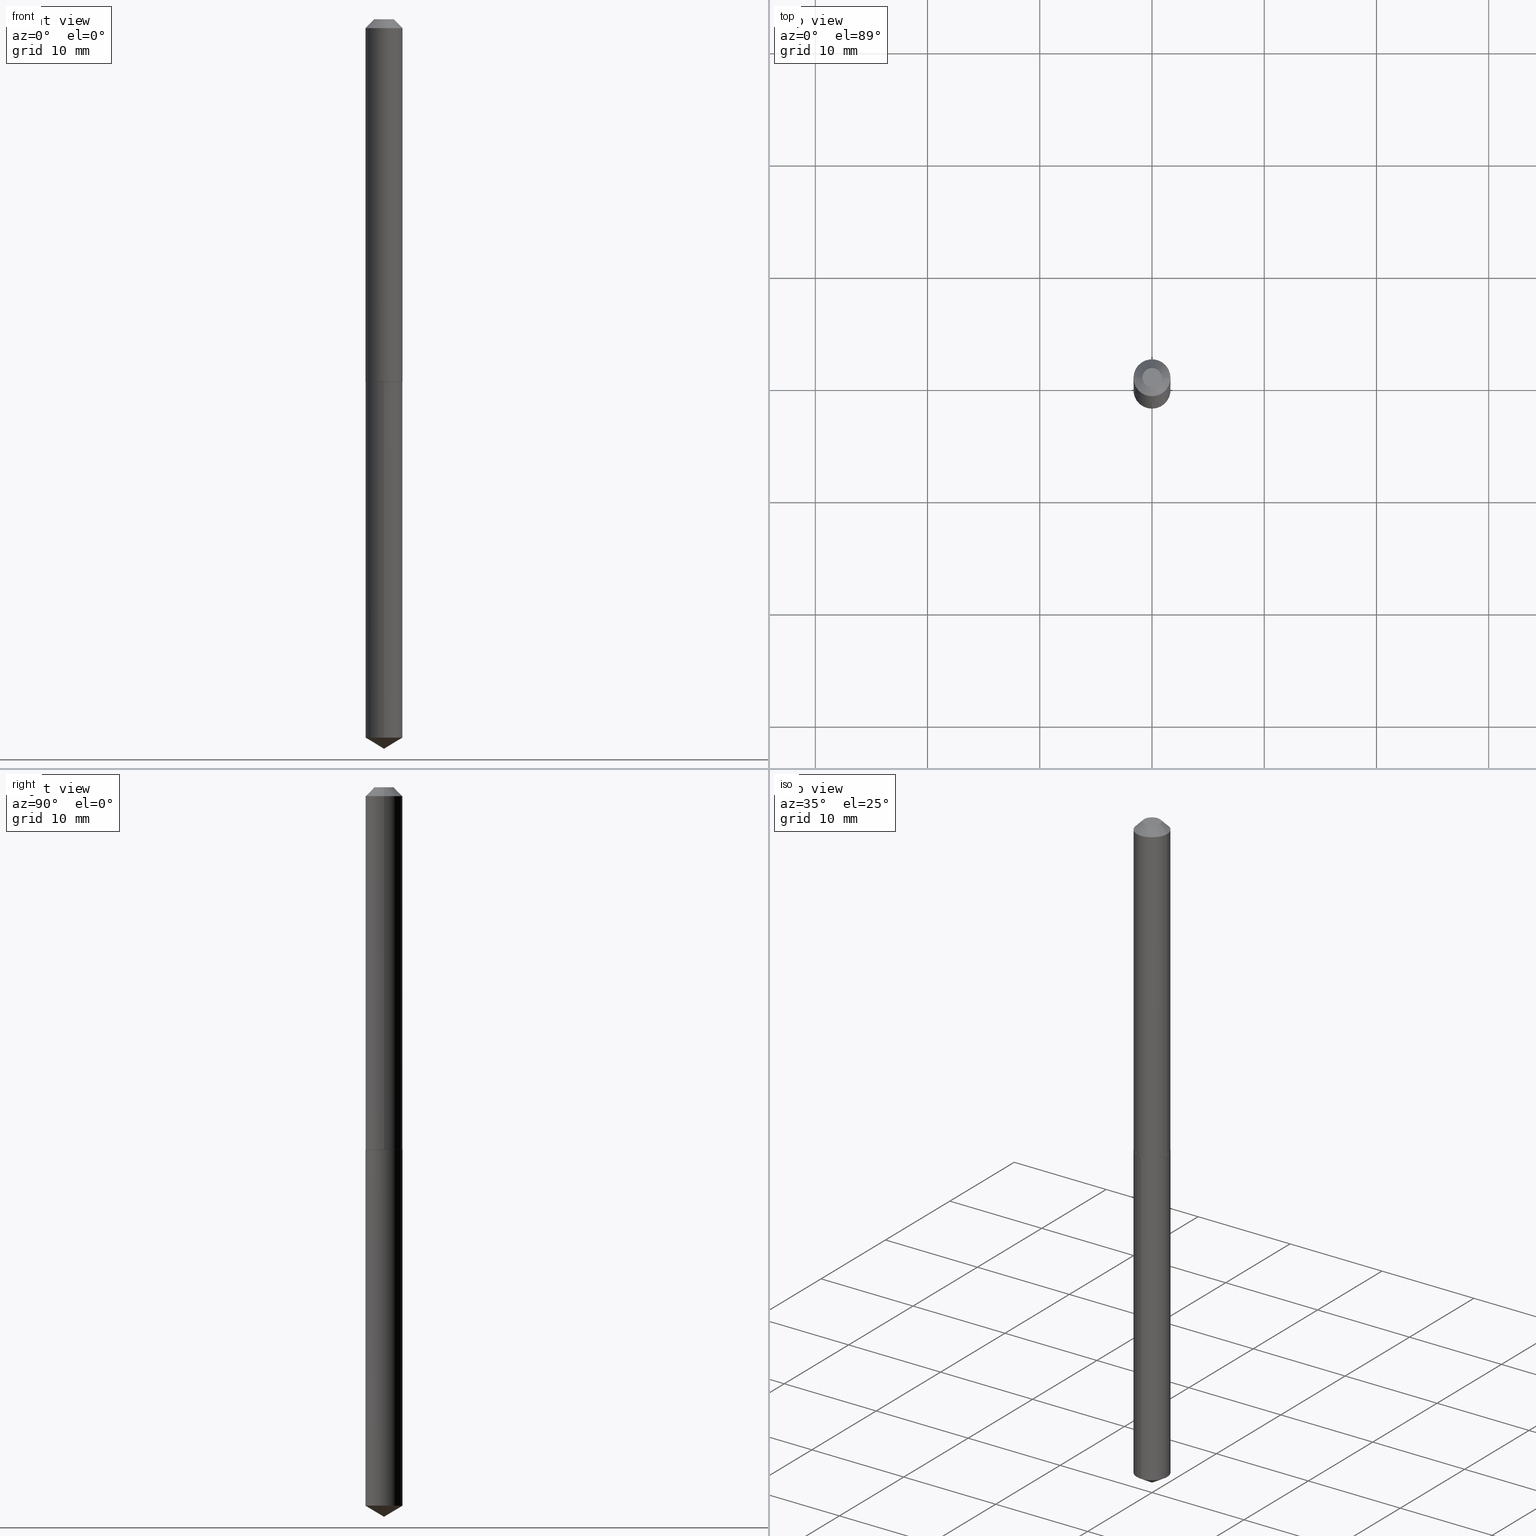
[diagram: canonical four-view strip — front | top / right | iso, engineering-drawing reading convention]
A machine part, canonical four-view strip (front | top / right | iso — engineering-drawing reading convention). The complete STEP part file that produces these views, byte-faithful:
ISO-10303-21;
HEADER;
FILE_DESCRIPTION (( 'STEP AP203' ),
    '1' );
FILE_NAME ('61070.STEP',
    '2024-04-23T03:10:02',
    ( '' ),
    ( '' ),
    'SwSTEP 2.0',
    'SolidWorks 2023',
    '' );
FILE_SCHEMA (( 'CONFIG_CONTROL_DESIGN' ));
ENDSEC;

DATA;
#1 =( CONVERSION_BASED_UNIT ( 'INCH', #216 ) LENGTH_UNIT ( ) NAMED_UNIT ( #62 ) );
#2 = ORIENTED_EDGE ( 'NONE', *, *, #220, .F. ) ;
#3 = VECTOR ( 'NONE', #80, 39.37007874015748143 ) ;
#4 = CARTESIAN_POINT ( 'NONE',  ( 6.258200250177314910E-29, -8.935048421693857319E-15, -2.559099999999999930 ) ) ;
#5 = ADVANCED_FACE ( 'NONE', ( #191 ), #238, .T. ) ;
#6 = DIRECTION ( 'NONE',  ( -1.000000000000000000, 6.982962677686266711E-15, 0.000000000000000000 ) ) ;
#7 = FACE_OUTER_BOUND ( 'NONE', #155, .T. ) ;
#8 = AXIS2_PLACEMENT_3D ( 'NONE', #338, #193, #314 ) ;
#9 = AXIS2_PLACEMENT_3D ( 'NONE', #377, #18, #171 ) ;
#10 = LINE ( 'NONE', #159, #65 ) ;
#11 = DESIGN_CONTEXT ( 'detailed design', #241, 'design' ) ;
#12 = FACE_OUTER_BOUND ( 'NONE', #358, .T. ) ;
#13 = CARTESIAN_POINT ( 'NONE',  ( 0.000000000000000000, 0.000000000000000000, 0.000000000000000000 ) ) ;
#14 = CARTESIAN_POINT ( 'NONE',  ( 4.614975068762160884E-16, 0.06494999999999555296, -1.271700000000000275 ) ) ;
#15 = CARTESIAN_POINT ( 'NONE',  ( 0.06445000000000018769, -4.890168763183709857E-15, -1.271700000000000053 ) ) ;
#16 = EDGE_LOOP ( 'NONE', ( #328, #149, #280, #21 ) ) ;
#17 = CARTESIAN_POINT ( 'NONE',  ( 7.642090019328601786E-31, -1.091087918388490144E-16, -0.03125000000000020123 ) ) ;
#18 = DIRECTION ( 'NONE',  ( -2.445534301021628204E-29, 3.491387546509555322E-15, 1.000000000000000000 ) ) ;
#19 = EDGE_LOOP ( 'NONE', ( #212, #88, #215, #326 ) ) ;
#20 = MECHANICAL_CONTEXT ( 'NONE', #208, 'mechanical' ) ;
#21 = ORIENTED_EDGE ( 'NONE', *, *, #207, .F. ) ;
#22 = VERTEX_POINT ( 'NONE', #337 ) ;
#23 = VECTOR ( 'NONE', #254, 39.37007874015748143 ) ;
#24 = AXIS2_PLACEMENT_3D ( 'NONE', #107, #352, #43 ) ;
#25 = DATE_AND_TIME ( #120, #333 ) ;
#26 = EDGE_CURVE ( 'NONE', #384, #375, #37, .T. ) ;
#27 = ORIENTED_EDGE ( 'NONE', *, *, #40, .T. ) ;
#28 = APPLICATION_PROTOCOL_DEFINITION ( 'international standard', 'config_control_design', 1994, #208 ) ;
#29 = ORIENTED_EDGE ( 'NONE', *, *, #128, .F. ) ;
#30 = DIRECTION ( 'NONE',  ( -2.445468806185136597E-29, 3.491481338843145583E-15, 1.000000000000000000 ) ) ;
#31 = CIRCLE ( 'NONE', #46, 0.03369999999999999385 ) ;
#32 = LOCAL_TIME ( 23, 10, 2.000000000000000000, #325 ) ;
#33 = FACE_OUTER_BOUND ( 'NONE', #180, .T. ) ;
#34 = CC_DESIGN_PERSON_AND_ORGANIZATION_ASSIGNMENT ( #334, #148, ( #177 ) ) ;
#35 = DIRECTION ( 'NONE',  ( 1.000000000000000000, -6.982962677686265922E-15, 4.876176775795935793E-29 ) ) ;
#36 = DIRECTION ( 'NONE',  ( -2.445534301021628204E-29, 3.491387546509555322E-15, 1.000000000000000000 ) ) ;
#37 = CIRCLE ( 'NONE', #367, 0.06494999999999999385 ) ;
#38 = CC_DESIGN_PERSON_AND_ORGANIZATION_ASSIGNMENT ( #60, #122, ( #113 ) ) ;
#39 = LINE ( 'NONE', #4, #59 ) ;
#40 = EDGE_CURVE ( 'NONE', #236, #302, #132, .T. ) ;
#41 = DIRECTION ( 'NONE',  ( 1.000000000000000000, -6.982962677686265922E-15, 4.876176775795935793E-29 ) ) ;
#42 = ADVANCED_FACE ( 'NONE', ( #370 ), #385, .T. ) ;
#43 = DIRECTION ( 'NONE',  ( 1.000000000000000000, -6.982962677686267499E-15, 0.000000000000000000 ) ) ;
#44 = FACE_OUTER_BOUND ( 'NONE', #357, .T. ) ;
#45 = AXIS2_PLACEMENT_3D ( 'NONE', #205, #292, #142 ) ;
#46 = AXIS2_PLACEMENT_3D ( 'NONE', #71, #272, #210 ) ;
#47 = ORIENTED_EDGE ( 'NONE', *, *, #336, .F. ) ;
#48 = DIRECTION ( 'NONE',  ( -2.445468806185136597E-29, 3.491481338843145583E-15, 1.000000000000000000 ) ) ;
#49 = CARTESIAN_POINT ( 'NONE',  ( -4.535434259156918360E-16, -0.06495000000000443474, -1.271699999999999608 ) ) ;
#50 = EDGE_CURVE ( 'NONE', #320, #53, #192, .T. ) ;
#51 = AXIS2_PLACEMENT_3D ( 'NONE', #99, #256, #197 ) ;
#52 = APPLICATION_PROTOCOL_DEFINITION ( 'international standard', 'config_control_design', 1994, #241 ) ;
#53 = VERTEX_POINT ( 'NONE', #64 ) ;
#54 = PERSON_AND_ORGANIZATION ( #243, #112 ) ;
#55 = CARTESIAN_POINT ( 'NONE',  ( 6.162844369715857787E-29, -8.798674614487400360E-15, -2.520074102794160442 ) ) ;
#56 = EDGE_CURVE ( 'NONE', #236, #307, #188, .T. ) ;
#57 = DATE_AND_TIME ( #152, #200 ) ;
#58 = VERTEX_POINT ( 'NONE', #284 ) ;
#59 = VECTOR ( 'NONE', #311, 39.37007874015748854 ) ;
#60 = PERSON_AND_ORGANIZATION ( #243, #112 ) ;
#61 = EDGE_LOOP ( 'NONE', ( #138, #47, #154, #223 ) ) ;
#62 = DIMENSIONAL_EXPONENTS ( 1.000000000000000000, 0.000000000000000000, 0.000000000000000000, 0.000000000000000000, 0.000000000000000000, 0.000000000000000000, 0.000000000000000000 ) ;
#63 = CARTESIAN_POINT ( 'NONE',  ( 7.642090019328601786E-31, -1.091087918388490144E-16, -0.03125000000000020123 ) ) ;
#64 = CARTESIAN_POINT ( 'NONE',  ( 0.06495000000000014651, -4.891914503853131360E-15, -1.271200000000000108 ) ) ;
#65 = VECTOR ( 'NONE', #104, 39.37007874015748143 ) ;
#66 = CARTESIAN_POINT ( 'NONE',  ( -0.06494999999999999385, -1.812242428011941536E-15, -0.03125000000000020123 ) ) ;
#67 = DIRECTION ( 'NONE',  ( -0.7071067811865452413, 2.468850131082233000E-15, -0.7071067811865497932 ) ) ;
#68 = EDGE_CURVE ( 'NONE', #375, #384, #172, .T. ) ;
#69 = PLANE ( 'NONE',  #290 ) ;
#70 = AXIS2_PLACEMENT_3D ( 'NONE', #344, #175, #144 ) ;
#71 = CARTESIAN_POINT ( 'NONE',  ( -5.839929314523175409E-48, 8.337871319499080759E-34, 2.388061258337333659E-19 ) ) ;
#72 = DIRECTION ( 'NONE',  ( 1.000000000000000000, -6.982962677686269077E-15, 0.000000000000000000 ) ) ;
#73 = ADVANCED_FACE ( 'NONE', ( #103 ), #93, .T. ) ;
#74 = VERTEX_POINT ( 'NONE', #66 ) ;
#75 = CYLINDRICAL_SURFACE ( 'NONE', #246, 0.06494999999999999385 ) ;
#76 = CARTESIAN_POINT ( 'NONE',  ( -4.535434259156613663E-16, -0.06495000000000882012, -2.520074102794160442 ) ) ;
#77 = ADVANCED_BREP_SHAPE_REPRESENTATION ( '61070', ( #305, #184, #141 ), #127 ) ;
#78 = APPROVAL_PERSON_ORGANIZATION ( #82, #255, #91 ) ;
#79 = ORIENTED_EDGE ( 'NONE', *, *, #115, .T. ) ;
#80 = DIRECTION ( 'NONE',  ( 6.090539988449801312E-15, 0.8571673007021169965, 0.5150380749100461619 ) ) ;
#81 = APPROVAL ( #242, 'UNSPECIFIED' ) ;
#82 = PERSON_AND_ORGANIZATION ( #243, #112 ) ;
#83 = EDGE_LOOP ( 'NONE', ( #387, #331, #349, #251 ) ) ;
#84 = CARTESIAN_POINT ( 'NONE',  ( 0.000000000000000000, 0.000000000000000000, 0.000000000000000000 ) ) ;
#85 = CIRCLE ( 'NONE', #259, 0.06445000000000018769 ) ;
#86 = EDGE_LOOP ( 'NONE', ( #123, #189 ) ) ;
#87 = PERSON_AND_ORGANIZATION_ROLE ( 'design_supplier' ) ;
#88 = ORIENTED_EDGE ( 'NONE', *, *, #207, .T. ) ;
#89 = EDGE_CURVE ( 'NONE', #182, #74, #10, .T. ) ;
#90 = ORIENTED_EDGE ( 'NONE', *, *, #128, .T. ) ;
#91 = APPROVAL_ROLE ( '' ) ;
#92 = EDGE_LOOP ( 'NONE', ( #151, #27, #282, #247 ) ) ;
#93 = CONICAL_SURFACE ( 'NONE', #315, 0.06494999999999999385, 0.7853981633974450594 ) ;
#94 = APPROVAL_PERSON_ORGANIZATION ( #250, #285, #131 ) ;
#95 = EDGE_LOOP ( 'NONE', ( #306, #249, #278 ) ) ;
#96 = CC_DESIGN_DATE_AND_TIME_ASSIGNMENT ( #156, #273, ( #113 ) ) ;
#97 = DIRECTION ( 'NONE',  ( 0.7071067811865452413, -7.319954787623248157E-15, -0.7071067811865497932 ) ) ;
#98 = CALENDAR_DATE ( 2024, 22, 4 ) ;
#99 = CARTESIAN_POINT ( 'NONE',  ( 6.162844369715857787E-29, -8.798674614487400360E-15, -2.520074102794160442 ) ) ;
#100 = CIRCLE ( 'NONE', #9, 0.06494999999999999385 ) ;
#101 = VECTOR ( 'NONE', #240, 39.37007874015748143 ) ;
#102 = LINE ( 'NONE', #342, #294 ) ;
#103 = FACE_OUTER_BOUND ( 'NONE', #61, .T. ) ;
#104 = DIRECTION ( 'NONE',  ( -2.445468806185136877E-29, 3.491481338843145188E-15, 1.000000000000000000 ) ) ;
#105 = AXIS2_PLACEMENT_3D ( 'NONE', #316, #270, #137 ) ;
#106 = FACE_OUTER_BOUND ( 'NONE', #16, .T. ) ;
#107 = CARTESIAN_POINT ( 'NONE',  ( 3.108679946422545888E-29, -4.438371077937407378E-15, -1.271200000000000108 ) ) ;
#108 = FACE_OUTER_BOUND ( 'NONE', #19, .T. ) ;
#109 = PRODUCT_DEFINITION_SHAPE ( 'NONE', 'NONE',  #113 ) ;
#110 = CIRCLE ( 'NONE', #361, 0.06495000000000014651 ) ;
#111 = CYLINDRICAL_SURFACE ( 'NONE', #271, 0.06495000000000007712 ) ;
#112 = ORGANIZATION ( 'UNSPECIFIED', 'UNSPECIFIED', '' ) ;
#113 = PRODUCT_DEFINITION ( 'UNKNOWN', '', #239, #11 ) ;
#114 = DIRECTION ( 'NONE',  ( 1.000000000000000000, -6.982962677686265133E-15, 0.000000000000000000 ) ) ;
#115 = EDGE_CURVE ( 'NONE', #274, #22, #227, .T. ) ;
#116 =( NAMED_UNIT ( * ) SI_UNIT ( $, .STERADIAN. ) SOLID_ANGLE_UNIT ( ) );
#117 = VERTEX_POINT ( 'NONE', #226 ) ;
#118 = PERSON_AND_ORGANIZATION_ROLE ( 'creator' ) ;
#119 = ORIENTED_EDGE ( 'NONE', *, *, #139, .T. ) ;
#120 = CALENDAR_DATE ( 2024, 22, 4 ) ;
#121 = ORIENTED_EDGE ( 'NONE', *, *, #341, .F. ) ;
#122 = PERSON_AND_ORGANIZATION_ROLE ( 'creator' ) ;
#123 = ORIENTED_EDGE ( 'NONE', *, *, #336, .T. ) ;
#124 = APPROVAL_DATE_TIME ( #366, #285 ) ;
#125 = CARTESIAN_POINT ( 'NONE',  ( -9.002259445301660668E-28, 1.285212734725032045E-13, 36.81097874015748062 ) ) ;
#126 = AXIS2_PLACEMENT_3D ( 'NONE', #364, #365, #308 ) ;
#127 =( GEOMETRIC_REPRESENTATION_CONTEXT ( 3 ) GLOBAL_UNCERTAINTY_ASSIGNED_CONTEXT ( ( #229 ) ) GLOBAL_UNIT_ASSIGNED_CONTEXT ( ( #1, #183, #116 ) ) REPRESENTATION_CONTEXT ( 'NONE', 'WORKASPACE' ) );
#128 = EDGE_CURVE ( 'NONE', #320, #58, #85, .T. ) ;
#129 = DIRECTION ( 'NONE',  ( 2.445468806185136597E-29, -3.491481338843145583E-15, -1.000000000000000000 ) ) ;
#130 = CARTESIAN_POINT ( 'NONE',  ( 0.06495000000000014651, -4.891914503853131360E-15, -1.271200000000000108 ) ) ;
#131 = APPROVAL_ROLE ( '' ) ;
#132 = LINE ( 'NONE', #232, #194 ) ;
#133 = ADVANCED_FACE ( 'NONE', ( #339 ), #369, .F. ) ;
#134 = APPROVAL_PERSON_ORGANIZATION ( #275, #81, #181 ) ;
#135 = DIRECTION ( 'NONE',  ( 2.445534301021627643E-29, -3.491387546509555322E-15, -1.000000000000000000 ) ) ;
#136 = DIRECTION ( 'NONE',  ( -2.445468806185136597E-29, 3.491481338843145583E-15, 1.000000000000000000 ) ) ;
#137 = DIRECTION ( 'NONE',  ( 1.000000000000000000, -6.982962677686267499E-15, 0.000000000000000000 ) ) ;
#138 = ORIENTED_EDGE ( 'NONE', *, *, #40, .F. ) ;
#139 = EDGE_CURVE ( 'NONE', #117, #375, #39, .T. ) ;
#140 = AXIS2_PLACEMENT_3D ( 'NONE', #343, #135, #165 ) ;
#141 = AXIS2_PLACEMENT_3D ( 'NONE', #84, #248, #386 ) ;
#142 = DIRECTION ( 'NONE',  ( 1.000000000000000000, -6.982962677686267499E-15, 0.000000000000000000 ) ) ;
#143 = CARTESIAN_POINT ( 'NONE',  ( 6.258368290450620302E-29, -8.934809870272603264E-15, -2.559099999999999930 ) ) ;
#144 = DIRECTION ( 'NONE',  ( -6.982962677686267499E-15, -1.000000000000000000, 3.468864327941548460E-15 ) ) ;
#145 = ADVANCED_FACE ( 'NONE', ( #33 ), #196, .T. ) ;
#146 = AXIS2_PLACEMENT_3D ( 'NONE', #312, #30, #35 ) ;
#147 = LINE ( 'NONE', #143, #3 ) ;
#148 = PERSON_AND_ORGANIZATION_ROLE ( 'design_owner' ) ;
#149 = ORIENTED_EDGE ( 'NONE', *, *, #341, .T. ) ;
#150 = COORDINATED_UNIVERSAL_TIME_OFFSET ( 5, 0, .BEHIND. ) ;
#151 = ORIENTED_EDGE ( 'NONE', *, *, #56, .F. ) ;
#152 = CALENDAR_DATE ( 2024, 22, 4 ) ;
#153 = CLOSED_SHELL ( 'NONE', ( #42, #145, #262, #161, #318, #300, #73, #340 ) ) ;
#154 = ORIENTED_EDGE ( 'NONE', *, *, #170, .T. ) ;
#155 = EDGE_LOOP ( 'NONE', ( #29, #121 ) ) ;
#156 = DATE_AND_TIME ( #218, #321 ) ;
#157 = EDGE_CURVE ( 'NONE', #53, #302, #163, .T. ) ;
#158 = ORIENTED_EDGE ( 'NONE', *, *, #26, .T. ) ;
#159 = CARTESIAN_POINT ( 'NONE',  ( -0.06495000000000007712, 4.614975068761856187E-16, -3.194848341120565109E-30 ) ) ;
#160 = AXIS2_PLACEMENT_3D ( 'NONE', #263, #36, #289 ) ;
#161 = ADVANCED_FACE ( 'NONE', ( #7 ), #69, .F. ) ;
#162 = CIRCLE ( 'NONE', #373, 0.06445000000000018769 ) ;
#163 = LINE ( 'NONE', #164, #354 ) ;
#164 = CARTESIAN_POINT ( 'NONE',  ( 0.06495000000000007712, -4.535434259157234891E-16, 3.167076815879463918E-30 ) ) ;
#165 = DIRECTION ( 'NONE',  ( 6.982962677686265922E-15, 1.000000000000000000, -3.491387546509555322E-15 ) ) ;
#166 = VECTOR ( 'NONE', #268, 39.37007874015748143 ) ;
#167 = SECURITY_CLASSIFICATION ( '', '', #186 ) ;
#168 = CARTESIAN_POINT ( 'NONE',  ( -0.06495000000000014651, -3.976873571061221069E-15, -1.271200000000000108 ) ) ;
#169 = DIRECTION ( 'NONE',  ( 1.000000000000000000, -6.982962677686267499E-15, 0.000000000000000000 ) ) ;
#170 = EDGE_CURVE ( 'NONE', #307, #74, #102, .T. ) ;
#171 = DIRECTION ( 'NONE',  ( -6.982962677686266711E-15, -1.000000000000000000, 4.206078512185163024E-15 ) ) ;
#172 = CIRCLE ( 'NONE', #51, 0.06494999999999999385 ) ;
#173 = CC_DESIGN_APPROVAL ( #81, ( #239 ) ) ;
#174 = CARTESIAN_POINT ( 'NONE',  ( 7.642090019328601786E-31, -1.091087918388490144E-16, -0.03125000000000020123 ) ) ;
#175 = DIRECTION ( 'NONE',  ( -2.445534301021628204E-29, 3.491387546509555322E-15, 1.000000000000000000 ) ) ;
#176 = CARTESIAN_POINT ( 'NONE',  ( 3.109902680825638129E-29, -4.440116818606828093E-15, -1.271700000000000053 ) ) ;
#177 = PRODUCT ( '61070', '61070', '', ( #20 ) ) ;
#178 = PERSON_AND_ORGANIZATION ( #243, #112 ) ;
#179 = LOCAL_TIME ( 23, 10, 2.000000000000000000, #287 ) ;
#180 = EDGE_LOOP ( 'NONE', ( #206, #335, #2, #389 ) ) ;
#181 = APPROVAL_ROLE ( '' ) ;
#182 = VERTEX_POINT ( 'NONE', #168 ) ;
#183 =( NAMED_UNIT ( * ) PLANE_ANGLE_UNIT ( ) SI_UNIT ( $, .RADIAN. ) );
#184 = MANIFOLD_SOLID_BREP ( 'Body-Move/Copy2[2]', #153 ) ;
#185 = DIRECTION ( 'NONE',  ( -2.445534301021628204E-29, 3.491387546509555322E-15, 1.000000000000000000 ) ) ;
#186 = SECURITY_CLASSIFICATION_LEVEL ( 'unclassified' ) ;
#187 = AXIS2_PLACEMENT_3D ( 'NONE', #225, #129, #198 ) ;
#188 = CIRCLE ( 'NONE', #126, 0.03369999999999999385 ) ;
#189 = ORIENTED_EDGE ( 'NONE', *, *, #56, .T. ) ;
#190 = COORDINATED_UNIVERSAL_TIME_OFFSET ( 5, 0, .BEHIND. ) ;
#191 = FACE_OUTER_BOUND ( 'NONE', #95, .T. ) ;
#192 = LINE ( 'NONE', #130, #23 ) ;
#193 = DIRECTION ( 'NONE',  ( -2.445534301021628204E-29, 3.491387546509555322E-15, 1.000000000000000000 ) ) ;
#194 = VECTOR ( 'NONE', #97, 39.37007874015748143 ) ;
#195 = ADVANCED_FACE ( 'NONE', ( #12 ), #313, .T. ) ;
#196 = CYLINDRICAL_SURFACE ( 'NONE', #146, 0.06495000000000007712 ) ;
#197 = DIRECTION ( 'NONE',  ( -6.982962677686266711E-15, -1.000000000000000000, 0.000000000000000000 ) ) ;
#198 = DIRECTION ( 'NONE',  ( -1.000000000000000000, 6.982962677686266711E-15, 0.000000000000000000 ) ) ;
#199 = CIRCLE ( 'NONE', #332, 0.06494999999999999385 ) ;
#200 = LOCAL_TIME ( 23, 10, 2.000000000000000000, #355 ) ;
#201 = FACE_OUTER_BOUND ( 'NONE', #86, .T. ) ;
#202 = EDGE_CURVE ( 'NONE', #375, #274, #260, .T. ) ;
#203 = LINE ( 'NONE', #317, #101 ) ;
#204 = ORIENTED_EDGE ( 'NONE', *, *, #323, .F. ) ;
#205 = CARTESIAN_POINT ( 'NONE',  ( 3.108679946422545888E-29, -4.438371077937407378E-15, -1.271200000000000108 ) ) ;
#206 = ORIENTED_EDGE ( 'NONE', *, *, #382, .T. ) ;
#207 = EDGE_CURVE ( 'NONE', #182, #53, #110, .T. ) ;
#208 = APPLICATION_CONTEXT ( 'configuration controlled 3d designs of mechanical parts and assemblies' ) ;
#209 = CIRCLE ( 'NONE', #24, 0.06495000000000014651 ) ;
#210 = DIRECTION ( 'NONE',  ( 1.000000000000000000, -6.982962677686267499E-15, 4.876196328173749550E-29 ) ) ;
#211 = CARTESIAN_POINT ( 'NONE',  ( 4.614975068762467554E-16, 0.06494999999999120921, -2.520074102794160442 ) ) ;
#212 = ORIENTED_EDGE ( 'NONE', *, *, #89, .F. ) ;
#213 = PRODUCT_RELATED_PRODUCT_CATEGORY ( 'detail', '', ( #177 ) ) ;
#214 = APPROVAL_STATUS ( 'not_yet_approved' ) ;
#215 = ORIENTED_EDGE ( 'NONE', *, *, #157, .T. ) ;
#216 = LENGTH_MEASURE_WITH_UNIT ( LENGTH_MEASURE( 0.02539999999999999897 ), #221 );
#217 = ORIENTED_EDGE ( 'NONE', *, *, #267, .T. ) ;
#218 = CALENDAR_DATE ( 2024, 22, 4 ) ;
#219 = ORIENTED_EDGE ( 'NONE', *, *, #360, .T. ) ;
#220 = EDGE_CURVE ( 'NONE', #302, #74, #199, .T. ) ;
#221 =( LENGTH_UNIT ( ) NAMED_UNIT ( * ) SI_UNIT ( $, .METRE. ) );
#222 = CC_DESIGN_SECURITY_CLASSIFICATION ( #167, ( #239 ) ) ;
#223 = ORIENTED_EDGE ( 'NONE', *, *, #264, .T. ) ;
#224 = ORIENTED_EDGE ( 'NONE', *, *, #261, .F. ) ;
#225 = CARTESIAN_POINT ( 'NONE',  ( 7.642090019328601786E-31, -1.091087918388490144E-16, -0.03125000000000020123 ) ) ;
#226 = CARTESIAN_POINT ( 'NONE',  ( 6.258366829744447257E-29, -8.934809870272603264E-15, -2.559099999999999930 ) ) ;
#227 = CIRCLE ( 'NONE', #8, 0.06494999999999999385 ) ;
#228 = CARTESIAN_POINT ( 'NONE',  ( 3.109902680825638129E-29, -4.440116818606828093E-15, -1.271700000000000053 ) ) ;
#229 = UNCERTAINTY_MEASURE_WITH_UNIT (LENGTH_MEASURE( 1.000000000000000082E-05 ), #1, 'distance_accuracy_value', 'NONE');
#230 = CARTESIAN_POINT ( 'NONE',  ( 3.109902680825638129E-29, -4.440116818606828093E-15, -1.271700000000000053 ) ) ;
#231 = CC_DESIGN_PERSON_AND_ORGANIZATION_ASSIGNMENT ( #54, #87, ( #239 ) ) ;
#232 = CARTESIAN_POINT ( 'NONE',  ( 0.06494999999999999385, -5.546981367941099671E-16, -0.03125000000000020123 ) ) ;
#233 = CLOSED_SHELL ( 'NONE', ( #390, #5, #309, #195, #133 ) ) ;
#234 = CARTESIAN_POINT ( 'NONE',  ( -0.03369999999999999385, 2.898802381574505777E-16, 2.388061258318971361E-19 ) ) ;
#235 = FACE_OUTER_BOUND ( 'NONE', #276, .T. ) ;
#236 = VERTEX_POINT ( 'NONE', #297 ) ;
#237 = CARTESIAN_POINT ( 'NONE',  ( 0.06494999999999999385, -5.626522177545718995E-16, -0.03125000000000020123 ) ) ;
#238 = CONICAL_SURFACE ( 'NONE', #310, 65.52281426576929846, 1.029744258676660307 ) ;
#239 = PRODUCT_DEFINITION_FORMATION_WITH_SPECIFIED_SOURCE ( 'ANY', '', #177, .NOT_KNOWN. ) ;
#240 = DIRECTION ( 'NONE',  ( -0.7071067811865957564, 7.493145998870527710E-15, 0.7071067811864992780 ) ) ;
#241 = APPLICATION_CONTEXT ( 'configuration controlled 3d designs of mechanical parts and assemblies' ) ;
#242 = APPROVAL_STATUS ( 'not_yet_approved' ) ;
#243 = PERSON ( 'UNSPECIFIED', 'UNSPECIFIED', 'UNSPECIFIED', ('UNSPECIFIED'), ('UNSPECIFIED'), ('UNSPECIFIED') ) ;
#244 = EDGE_LOOP ( 'NONE', ( #79, #217 ) ) ;
#245 = PERSON_AND_ORGANIZATION_ROLE ( 'classification_officer' ) ;
#246 = AXIS2_PLACEMENT_3D ( 'NONE', #176, #281, #301 ) ;
#247 = ORIENTED_EDGE ( 'NONE', *, *, #170, .F. ) ;
#248 = DIRECTION ( 'NONE',  ( 0.000000000000000000, 0.000000000000000000, 1.000000000000000000 ) ) ;
#249 = ORIENTED_EDGE ( 'NONE', *, *, #323, .T. ) ;
#250 = PERSON_AND_ORGANIZATION ( #243, #112 ) ;
#251 = ORIENTED_EDGE ( 'NONE', *, *, #202, .F. ) ;
#252 = CONICAL_SURFACE ( 'NONE', #70, 65.52281426576929846, 1.029744258676660307 ) ;
#253 = DIRECTION ( 'NONE',  ( -6.982962677686267499E-15, -1.000000000000000000, 3.468864327941548460E-15 ) ) ;
#254 = DIRECTION ( 'NONE',  ( 0.7071067811865957564, -2.468850131082761932E-15, 0.7071067811864992780 ) ) ;
#255 = APPROVAL ( #214, 'UNSPECIFIED' ) ;
#256 = DIRECTION ( 'NONE',  ( -2.445534301021628204E-29, 3.491387546509555322E-15, 1.000000000000000000 ) ) ;
#257 = SHAPE_DEFINITION_REPRESENTATION ( #109, #77 ) ;
#258 = DIRECTION ( 'NONE',  ( -2.438088387897960049E-29, 3.491481338843145188E-15, 1.000000000000000000 ) ) ;
#259 = AXIS2_PLACEMENT_3D ( 'NONE', #230, #136, #286 ) ;
#260 = LINE ( 'NONE', #319, #283 ) ;
#261 = EDGE_CURVE ( 'NONE', #384, #22, #379, .T. ) ;
#262 = ADVANCED_FACE ( 'NONE', ( #44 ), #372, .T. ) ;
#263 = CARTESIAN_POINT ( 'NONE',  ( 3.109902680825638129E-29, -4.440116818606828093E-15, -1.271700000000000053 ) ) ;
#264 = EDGE_CURVE ( 'NONE', #74, #302, #378, .T. ) ;
#265 = PLANE ( 'NONE',  #362 ) ;
#266 = CONICAL_SURFACE ( 'NONE', #105, 0.06495000000000014651, 0.7853981633975165577 ) ;
#267 = EDGE_CURVE ( 'NONE', #22, #274, #100, .T. ) ;
#268 = DIRECTION ( 'NONE',  ( -2.445534301021628204E-29, 3.491387546509555322E-15, 1.000000000000000000 ) ) ;
#269 = CARTESIAN_POINT ( 'NONE',  ( -2.919964657261587705E-48, 4.168935659749540379E-34, 1.194030629168666829E-19 ) ) ;
#270 = DIRECTION ( 'NONE',  ( -2.445468806185136597E-29, 3.491481338843145583E-15, 1.000000000000000000 ) ) ;
#271 = AXIS2_PLACEMENT_3D ( 'NONE', #13, #350, #41 ) ;
#272 = DIRECTION ( 'NONE',  ( -2.445468806185136597E-29, 3.491481338843145583E-15, 1.000000000000000000 ) ) ;
#273 = DATE_TIME_ROLE ( 'creation_date' ) ;
#274 = VERTEX_POINT ( 'NONE', #49 ) ;
#275 = PERSON_AND_ORGANIZATION ( #243, #112 ) ;
#276 = EDGE_LOOP ( 'NONE', ( #204, #119, #353 ) ) ;
#277 = AXIS2_PLACEMENT_3D ( 'NONE', #17, #293, #324 ) ;
#278 = ORIENTED_EDGE ( 'NONE', *, *, #68, .F. ) ;
#279 = DATE_AND_TIME ( #330, #32 ) ;
#280 = ORIENTED_EDGE ( 'NONE', *, *, #50, .T. ) ;
#281 = DIRECTION ( 'NONE',  ( -2.445534301021628204E-29, 3.491387546509555322E-15, 1.000000000000000000 ) ) ;
#282 = ORIENTED_EDGE ( 'NONE', *, *, #220, .T. ) ;
#283 = VECTOR ( 'NONE', #322, 39.37007874015748143 ) ;
#284 = CARTESIAN_POINT ( 'NONE',  ( -0.06445000000000018769, -3.979522798235331481E-15, -1.271700000000000053 ) ) ;
#285 = APPROVAL ( #295, 'UNSPECIFIED' ) ;
#286 = DIRECTION ( 'NONE',  ( 1.000000000000000000, -6.982962677686269077E-15, 0.000000000000000000 ) ) ;
#287 = COORDINATED_UNIVERSAL_TIME_OFFSET ( 5, 0, .BEHIND. ) ;
#288 = DIRECTION ( 'NONE',  ( -2.445468806185136877E-29, 3.491481338843145188E-15, 1.000000000000000000 ) ) ;
#289 = DIRECTION ( 'NONE',  ( -6.982962677686266711E-15, -1.000000000000000000, 4.206078512185163024E-15 ) ) ;
#290 = AXIS2_PLACEMENT_3D ( 'NONE', #228, #258, #368 ) ;
#291 = DIRECTION ( 'NONE',  ( 2.445468806185136597E-29, -3.491481338843145583E-15, -1.000000000000000000 ) ) ;
#292 = DIRECTION ( 'NONE',  ( -2.445468806185136597E-29, 3.491481338843145583E-15, 1.000000000000000000 ) ) ;
#293 = DIRECTION ( 'NONE',  ( -2.445468806185136597E-29, 3.491481338843145583E-15, 1.000000000000000000 ) ) ;
#294 = VECTOR ( 'NONE', #67, 39.37007874015748143 ) ;
#295 = APPROVAL_STATUS ( 'not_yet_approved' ) ;
#296 = CARTESIAN_POINT ( 'NONE',  ( 3.108679946422545888E-29, -4.438371077937407378E-15, -1.271200000000000108 ) ) ;
#297 = CARTESIAN_POINT ( 'NONE',  ( 0.03369999999999999385, -3.929484596595052854E-16, 2.388061258359294556E-19 ) ) ;
#298 = CC_DESIGN_PERSON_AND_ORGANIZATION_ASSIGNMENT ( #178, #245, ( #167 ) ) ;
#299 = DIRECTION ( 'NONE',  ( -2.445468806185136597E-29, 3.491481338843145583E-15, 1.000000000000000000 ) ) ;
#300 = ADVANCED_FACE ( 'NONE', ( #108 ), #111, .T. ) ;
#301 = DIRECTION ( 'NONE',  ( -6.982962677686266711E-15, -1.000000000000000000, 4.206078512185163024E-15 ) ) ;
#302 = VERTEX_POINT ( 'NONE', #237 ) ;
#303 = ORIENTED_EDGE ( 'NONE', *, *, #382, .F. ) ;
#304 = DIRECTION ( 'NONE',  ( -6.982962677686266711E-15, -1.000000000000000000, 0.000000000000000000 ) ) ;
#305 = MANIFOLD_SOLID_BREP ( 'Body-Move/Copy2[1]', #233 ) ;
#306 = ORIENTED_EDGE ( 'NONE', *, *, #139, .F. ) ;
#307 = VERTEX_POINT ( 'NONE', #234 ) ;
#308 = DIRECTION ( 'NONE',  ( 1.000000000000000000, -6.982962677686267499E-15, 4.876196328173749550E-29 ) ) ;
#309 = ADVANCED_FACE ( 'NONE', ( #235 ), #252, .T. ) ;
#310 = AXIS2_PLACEMENT_3D ( 'NONE', #125, #329, #253 ) ;
#311 = DIRECTION ( 'NONE',  ( -5.985567269335963368E-15, -0.8571673007021134438, 0.5150380749100521571 ) ) ;
#312 = CARTESIAN_POINT ( 'NONE',  ( 0.000000000000000000, 0.000000000000000000, 0.000000000000000000 ) ) ;
#313 = CYLINDRICAL_SURFACE ( 'NONE', #160, 0.06494999999999999385 ) ;
#314 = DIRECTION ( 'NONE',  ( -6.982962677686266711E-15, -1.000000000000000000, 4.206078512185163024E-15 ) ) ;
#315 = AXIS2_PLACEMENT_3D ( 'NONE', #63, #291, #6 ) ;
#316 = CARTESIAN_POINT ( 'NONE',  ( 3.108679946422545888E-29, -4.438371077937407378E-15, -1.271200000000000108 ) ) ;
#317 = CARTESIAN_POINT ( 'NONE',  ( -0.06495000000000014651, -3.976873571061221069E-15, -1.271200000000000108 ) ) ;
#318 = ADVANCED_FACE ( 'NONE', ( #106 ), #266, .T. ) ;
#319 = CARTESIAN_POINT ( 'NONE',  ( -4.535434259156918360E-16, -0.06495000000000443474, -1.271699999999999608 ) ) ;
#320 = VERTEX_POINT ( 'NONE', #15 ) ;
#321 = LOCAL_TIME ( 23, 10, 2.000000000000000000, #190 ) ;
#322 = DIRECTION ( 'NONE',  ( -2.445534301021628204E-29, 3.491387546509555322E-15, 1.000000000000000000 ) ) ;
#323 = EDGE_CURVE ( 'NONE', #117, #384, #147, .T. ) ;
#324 = DIRECTION ( 'NONE',  ( 1.000000000000000000, -6.982962677686265133E-15, 0.000000000000000000 ) ) ;
#325 = COORDINATED_UNIVERSAL_TIME_OFFSET ( 5, 0, .BEHIND. ) ;
#326 = ORIENTED_EDGE ( 'NONE', *, *, #264, .F. ) ;
#327 = APPROVAL_DATE_TIME ( #25, #255 ) ;
#328 = ORIENTED_EDGE ( 'NONE', *, *, #360, .F. ) ;
#329 = DIRECTION ( 'NONE',  ( -2.445534301021628204E-29, 3.491387546509555322E-15, 1.000000000000000000 ) ) ;
#330 = CALENDAR_DATE ( 2024, 22, 4 ) ;
#331 = ORIENTED_EDGE ( 'NONE', *, *, #261, .T. ) ;
#332 = AXIS2_PLACEMENT_3D ( 'NONE', #174, #48, #114 ) ;
#333 = LOCAL_TIME ( 23, 10, 2.000000000000000000, #150 ) ;
#334 = PERSON_AND_ORGANIZATION ( #243, #112 ) ;
#335 = ORIENTED_EDGE ( 'NONE', *, *, #89, .T. ) ;
#336 = EDGE_CURVE ( 'NONE', #307, #236, #31, .T. ) ;
#337 = CARTESIAN_POINT ( 'NONE',  ( 4.614975068762469526E-16, 0.06494999999999556684, -1.271700000000000275 ) ) ;
#338 = CARTESIAN_POINT ( 'NONE',  ( 3.109902680825638129E-29, -4.440116818606828093E-15, -1.271700000000000053 ) ) ;
#339 = FACE_OUTER_BOUND ( 'NONE', #244, .T. ) ;
#340 = ADVANCED_FACE ( 'NONE', ( #201 ), #265, .F. ) ;
#341 = EDGE_CURVE ( 'NONE', #58, #320, #162, .T. ) ;
#342 = CARTESIAN_POINT ( 'NONE',  ( -0.06494999999999999385, 3.444346340768739447E-16, -0.03125000000000020123 ) ) ;
#343 = CARTESIAN_POINT ( 'NONE',  ( 3.109902680825638129E-29, -4.440116818606828093E-15, -1.271700000000000053 ) ) ;
#344 = CARTESIAN_POINT ( 'NONE',  ( -9.002259445301660668E-28, 1.285212734725032045E-13, 36.81097874015748062 ) ) ;
#345 = CC_DESIGN_APPROVAL ( #255, ( #113 ) ) ;
#346 = CC_DESIGN_DATE_AND_TIME_ASSIGNMENT ( #57, #388, ( #167 ) ) ;
#347 = DIRECTION ( 'NONE',  ( -1.000000000000000000, 6.982962677686265922E-15, -4.876176775795935793E-29 ) ) ;
#348 = FACE_OUTER_BOUND ( 'NONE', #83, .T. ) ;
#349 = ORIENTED_EDGE ( 'NONE', *, *, #115, .F. ) ;
#350 = DIRECTION ( 'NONE',  ( -2.445468806185136597E-29, 3.491481338843145583E-15, 1.000000000000000000 ) ) ;
#351 = CC_DESIGN_APPROVAL ( #285, ( #167 ) ) ;
#352 = DIRECTION ( 'NONE',  ( -2.445468806185136597E-29, 3.491481338843145583E-15, 1.000000000000000000 ) ) ;
#353 = ORIENTED_EDGE ( 'NONE', *, *, #26, .F. ) ;
#354 = VECTOR ( 'NONE', #288, 39.37007874015748143 ) ;
#355 = COORDINATED_UNIVERSAL_TIME_OFFSET ( 5, 0, .BEHIND. ) ;
#356 = ORIENTED_EDGE ( 'NONE', *, *, #267, .F. ) ;
#357 = EDGE_LOOP ( 'NONE', ( #90, #219, #303, #381 ) ) ;
#358 = EDGE_LOOP ( 'NONE', ( #224, #158, #363, #356 ) ) ;
#359 = CC_DESIGN_PERSON_AND_ORGANIZATION_ASSIGNMENT ( #383, #118, ( #239 ) ) ;
#360 = EDGE_CURVE ( 'NONE', #58, #182, #203, .T. ) ;
#361 = AXIS2_PLACEMENT_3D ( 'NONE', #296, #299, #169 ) ;
#362 = AXIS2_PLACEMENT_3D ( 'NONE', #269, #371, #347 ) ;
#363 = ORIENTED_EDGE ( 'NONE', *, *, #202, .T. ) ;
#364 = CARTESIAN_POINT ( 'NONE',  ( -5.839929314523175409E-48, 8.337871319499080759E-34, 2.388061258337333659E-19 ) ) ;
#365 = DIRECTION ( 'NONE',  ( -2.445468806185136597E-29, 3.491481338843145583E-15, 1.000000000000000000 ) ) ;
#366 = DATE_AND_TIME ( #98, #179 ) ;
#367 = AXIS2_PLACEMENT_3D ( 'NONE', #55, #185, #304 ) ;
#368 = DIRECTION ( 'NONE',  ( 1.000000000000000000, -6.982962677686265922E-15, 4.876176775795935793E-29 ) ) ;
#369 = PLANE ( 'NONE',  #140 ) ;
#370 = FACE_OUTER_BOUND ( 'NONE', #92, .T. ) ;
#371 = DIRECTION ( 'NONE',  ( 2.438088387897960049E-29, -3.491481338843145188E-15, -1.000000000000000000 ) ) ;
#372 = CONICAL_SURFACE ( 'NONE', #45, 0.06495000000000014651, 0.7853981633975165577 ) ;
#373 = AXIS2_PLACEMENT_3D ( 'NONE', #374, #376, #72 ) ;
#374 = CARTESIAN_POINT ( 'NONE',  ( 3.109902680825638129E-29, -4.440116818606828093E-15, -1.271700000000000053 ) ) ;
#375 = VERTEX_POINT ( 'NONE', #76 ) ;
#376 = DIRECTION ( 'NONE',  ( -2.445468806185136597E-29, 3.491481338843145583E-15, 1.000000000000000000 ) ) ;
#377 = CARTESIAN_POINT ( 'NONE',  ( 3.109902680825638129E-29, -4.440116818606828093E-15, -1.271700000000000053 ) ) ;
#378 = CIRCLE ( 'NONE', #277, 0.06494999999999999385 ) ;
#379 = LINE ( 'NONE', #14, #166 ) ;
#380 = APPROVAL_DATE_TIME ( #279, #81 ) ;
#381 = ORIENTED_EDGE ( 'NONE', *, *, #50, .F. ) ;
#382 = EDGE_CURVE ( 'NONE', #53, #182, #209, .T. ) ;
#383 = PERSON_AND_ORGANIZATION ( #243, #112 ) ;
#384 = VERTEX_POINT ( 'NONE', #211 ) ;
#385 = CONICAL_SURFACE ( 'NONE', #187, 0.06494999999999999385, 0.7853981633974450594 ) ;
#386 = DIRECTION ( 'NONE',  ( 1.000000000000000000, 0.000000000000000000, 0.000000000000000000 ) ) ;
#387 = ORIENTED_EDGE ( 'NONE', *, *, #68, .T. ) ;
#388 = DATE_TIME_ROLE ( 'classification_date' ) ;
#389 = ORIENTED_EDGE ( 'NONE', *, *, #157, .F. ) ;
#390 = ADVANCED_FACE ( 'NONE', ( #348 ), #75, .T. ) ;
ENDSEC;
END-ISO-10303-21;
